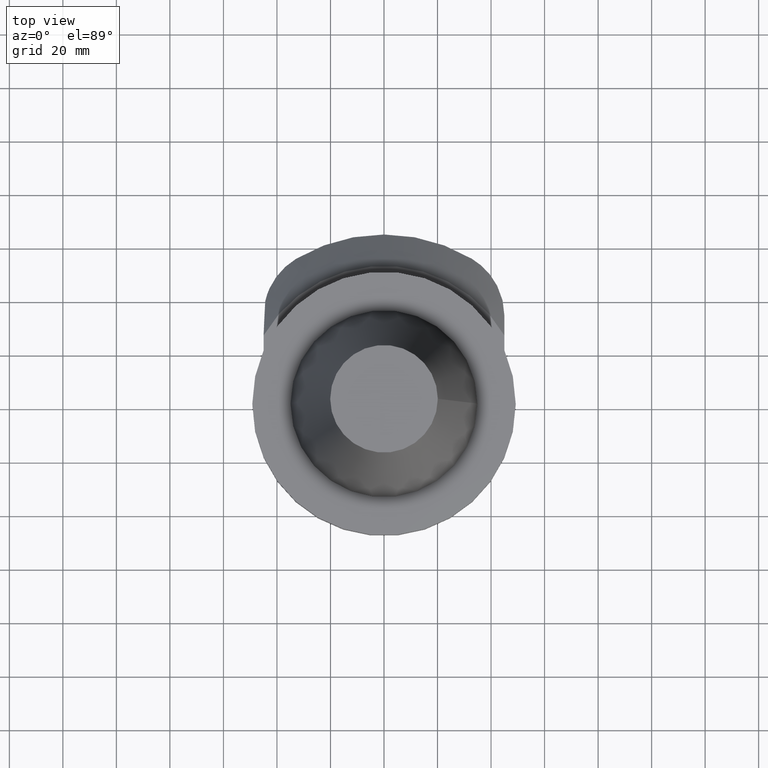
[diagram: clean part render]
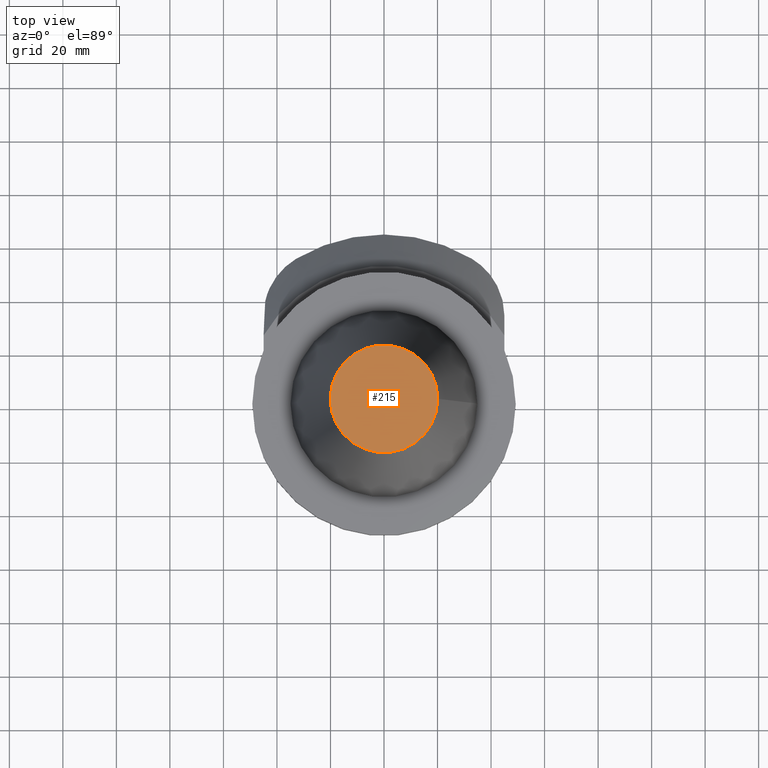
[diagram: same view with one face highlighted and labeled with its STEP entity id]
A machine part, top view. The second image highlights one B-rep face of the part: STEP entity #215.
In plain terms, the highlighted planar face has unit normal (0, 0, 1).
Its self-contained STEP definition (entity closure, byte-faithful):
#215=ADVANCED_FACE('Unnamed[1]',(#463),#464,.T.);
#240=EDGE_CURVE('Unnamed[1]',#496,#496,#497,.T.);
#463=FACE_OUTER_BOUND('',#811,.T.);
#464=PLANE('',#812);
#496=VERTEX_POINT('',#887);
#497=CIRCLE('',#888,20.1083333297217);
#811=EDGE_LOOP('',(#1140));
#812=AXIS2_PLACEMENT_3D('',#1141,#1142,#1143);
#887=CARTESIAN_POINT('',(20.1083333297217,2.52736483240379E-015,101.6));
#888=AXIS2_PLACEMENT_3D('',#1179,#1180,#1181);
#1140=ORIENTED_EDGE('',*,*,#240,.F.);
#1141=CARTESIAN_POINT('',(10.0541666648608,4.37428528603618E-015,101.6));
#1142=DIRECTION('',(3.41110880978797E-015,6.1232339957367E-017,1.0));
#1143=DIRECTION('',(-1.0,1.83697019872103E-016,3.41110880978797E-015));
#1179=CARTESIAN_POINT('',(-1.95224826537144E-014,6.22120573966856E-015,101.6));
#1180=DIRECTION('',(-3.41757090727388E-015,-6.1232339957367E-017,-1.0));
#1181=DIRECTION('',(1.0,-1.83697019872103E-016,-3.41757090727388E-015));